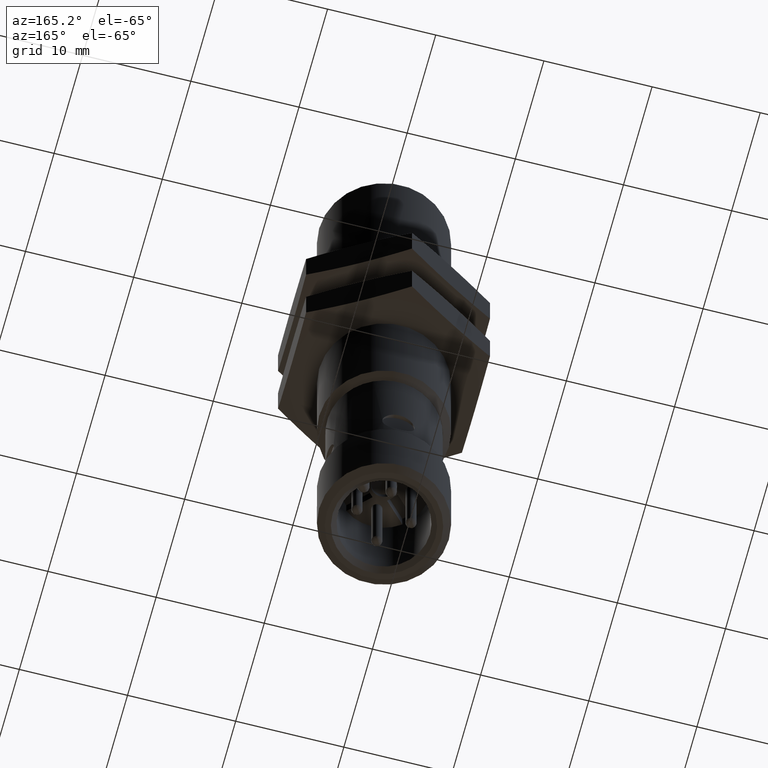
[diagram: clean part render]
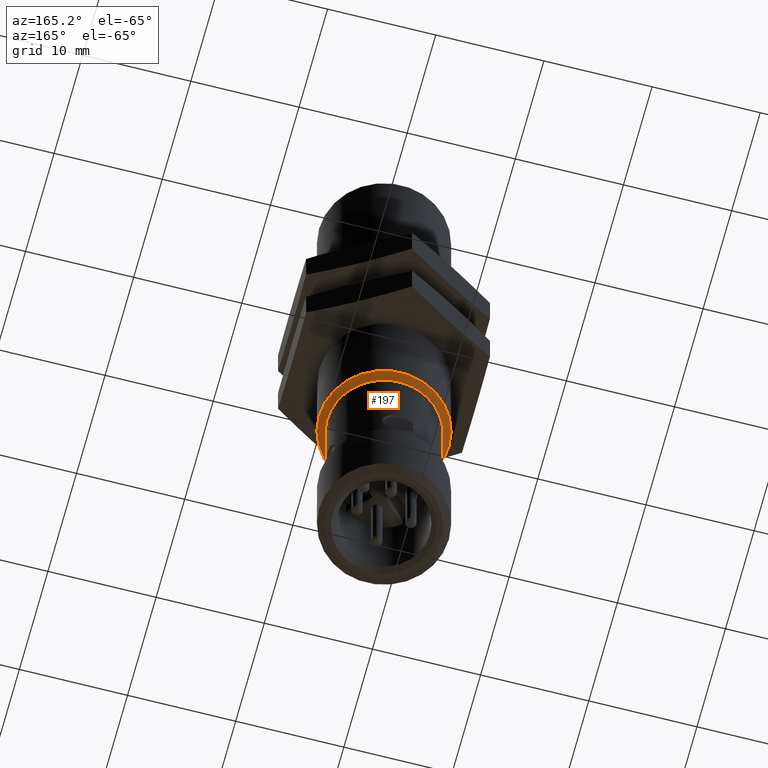
[diagram: same view with one face highlighted and labeled with its STEP entity id]
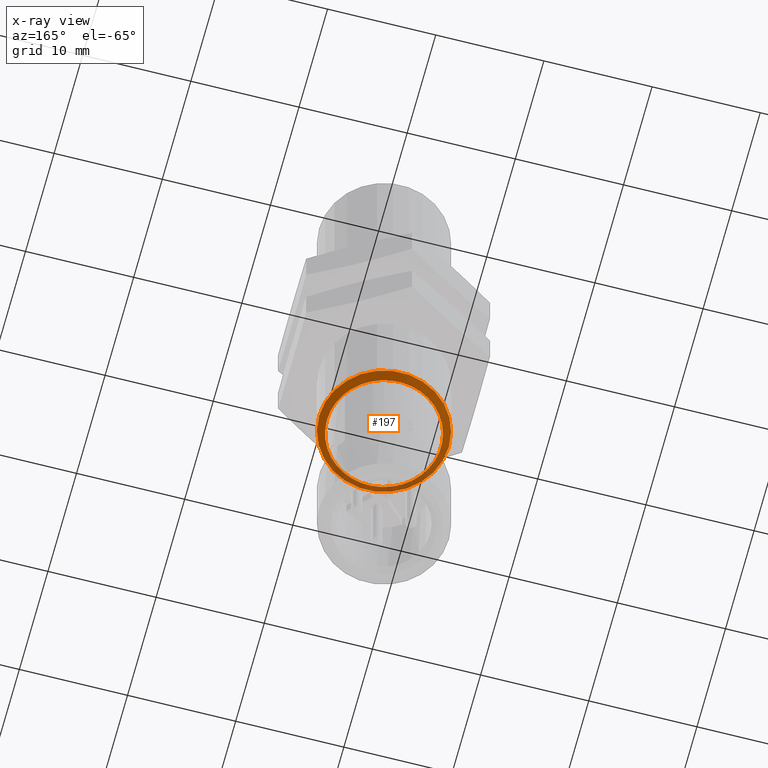
[diagram: x-ray of the same camera — body ghosted, the highlighted face saturated]
A machine part, auxiliary view. The second image highlights one B-rep face of the part: STEP entity #197.
The next image is the same camera in x-ray: the body ghosted, the highlighted face saturated — about 27% of this face is hidden behind the body in this view.
In plain terms, the highlighted conical surface has half-angle 56 deg.
Its self-contained STEP definition (entity closure, byte-faithful):
#87 = DIRECTION ( 'NONE',  ( -0.0000000000000000000, -1.000000000000000000, -0.0000000000000000000 ) ) ;
#119 = FACE_OUTER_BOUND ( 'NONE', #370, .T. ) ;
#197 = ADVANCED_FACE ( 'NONE', ( #1287, #119 ), #1555, .T. ) ;
#348 = CARTESIAN_POINT ( 'NONE',  ( 101.0540168275933723, -35.22897141722869918, -25.12593304551903017 ) ) ;
#370 = EDGE_LOOP ( 'NONE', ( #3012 ) ) ;
#412 = EDGE_CURVE ( 'NONE', #803, #803, #2827, .T. ) ;
#509 = ORIENTED_EDGE ( 'NONE', *, *, #412, .T. ) ;
#582 = CARTESIAN_POINT ( 'NONE',  ( 101.0540168275933723, -35.22897141723397851, -25.12593304551903017 ) ) ;
#629 = EDGE_CURVE ( 'NONE', #2092, #2092, #2311, .T. ) ;
#803 = VERTEX_POINT ( 'NONE', #1878 ) ;
#812 = DIRECTION ( 'NONE',  ( 0.0000000000000000000, -1.000000000000000000, -0.0000000000000000000 ) ) ;
#819 = DIRECTION ( 'NONE',  ( 0.0000000000000000000, 0.0000000000000000000, 1.000000000000000000 ) ) ;
#930 = CARTESIAN_POINT ( 'NONE',  ( 101.0540168275933723, -35.22897141722869918, -24.88971257307808216 ) ) ;
#1287 = FACE_BOUND ( 'NONE', #1907, .T. ) ;
#1555 = CONICAL_SURFACE ( 'NONE', #1700, 0.2362204724437031722, 0.9773843810910156638 ) ;
#1657 = AXIS2_PLACEMENT_3D ( 'NONE', #2831, #2133, #2817 ) ;
#1700 = AXIS2_PLACEMENT_3D ( 'NONE', #582, #812, #2414 ) ;
#1878 = CARTESIAN_POINT ( 'NONE',  ( 101.0540168275933723, -35.20972094415881060, -25.33361351795768002 ) ) ;
#1907 = EDGE_LOOP ( 'NONE', ( #509 ) ) ;
#2092 = VERTEX_POINT ( 'NONE', #930 ) ;
#2133 = DIRECTION ( 'NONE',  ( 0.0000000000000000000, -1.000000000000000000, -0.0000000000000000000 ) ) ;
#2311 = CIRCLE ( 'NONE', #2494, 0.2362204724409494583 ) ;
#2414 = DIRECTION ( 'NONE',  ( 0.0000000000000000000, 0.0000000000000000000, -1.000000000000000000 ) ) ;
#2494 = AXIS2_PLACEMENT_3D ( 'NONE', #348, #87, #819 ) ;
#2817 = DIRECTION ( 'NONE',  ( 0.0000000000000000000, 0.0000000000000000000, -1.000000000000000000 ) ) ;
#2827 = CIRCLE ( 'NONE', #1657, 0.2076804724386495660 ) ;
#2831 = CARTESIAN_POINT ( 'NONE',  ( 101.0540168275933723, -35.20972094415881060, -25.12593304551903017 ) ) ;
#3012 = ORIENTED_EDGE ( 'NONE', *, *, #629, .F. ) ;